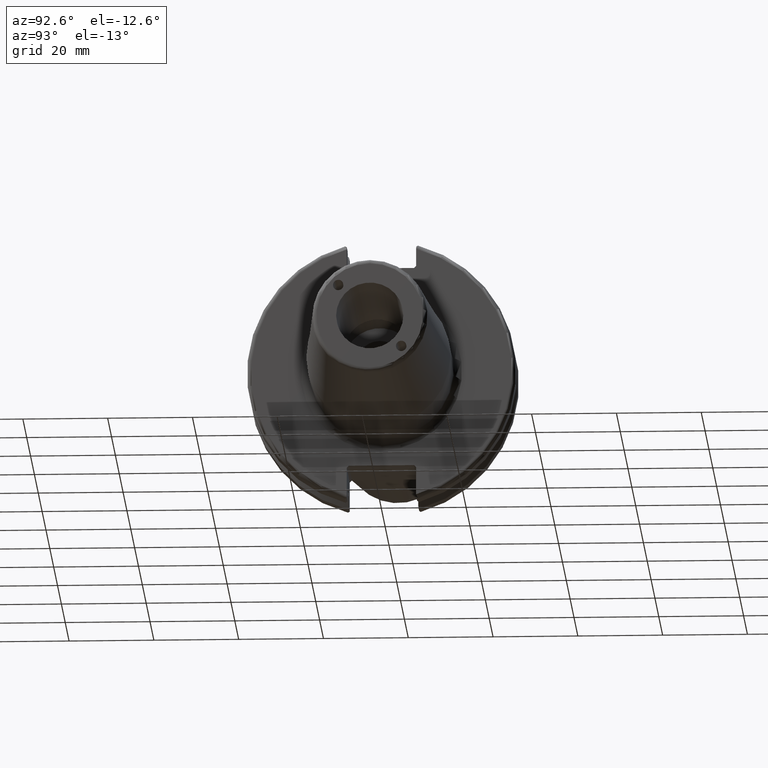
[diagram: clean part render]
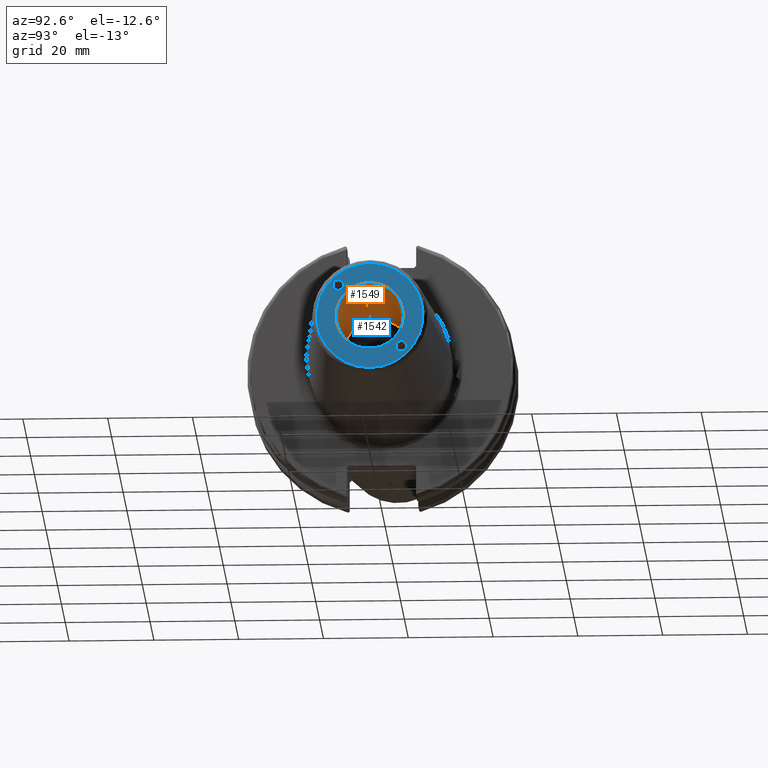
[diagram: same view with the hole feature highlighted: cylindrical wall and planar end face, labeled with their STEP entity ids]
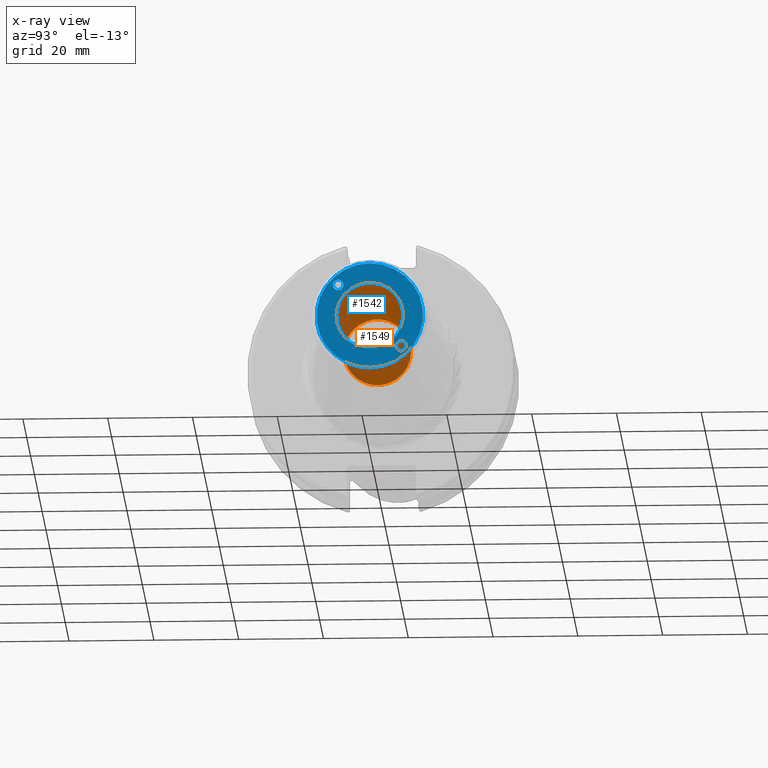
[diagram: x-ray of the same camera — body ghosted, the hole faces saturated]
A machine part, auxiliary view. The highlighted faces form one hole feature of diameter 15.875 mm: the cylindrical wall (entity #1549, orange) and its adjacent planar end face (entity #1542, blue) — they share a circular edge in the B-rep.
The next image is the same camera in x-ray (body ghosted, the hole faces saturated) — the bore reads through the body.
Wall:
#149=CYLINDRICAL_SURFACE('',#1684,7.9375);
#188=FACE_OUTER_BOUND('',#284,.T.);
#284=EDGE_LOOP('',(#1105,#1106,#1107,#1108));
#393=LINE('',#2394,#491);
#491=VECTOR('',#1926,7.9375);
#578=CIRCLE('',#1666,7.9375);
#590=CIRCLE('',#1685,7.9375);
#656=VERTEX_POINT('',#2340);
#677=VERTEX_POINT('',#2393);
#818=EDGE_CURVE('',#656,#656,#578,.T.);
#843=EDGE_CURVE('',#656,#677,#393,.T.);
#844=EDGE_CURVE('',#677,#677,#590,.T.);
#1105=ORIENTED_EDGE('',*,*,#818,.T.);
#1106=ORIENTED_EDGE('',*,*,#843,.T.);
#1107=ORIENTED_EDGE('',*,*,#844,.F.);
#1108=ORIENTED_EDGE('',*,*,#843,.F.);
#1549=ADVANCED_FACE('',(#188),#149,.F.);
#1666=AXIS2_PLACEMENT_3D('',#2341,#1875,#1876);
#1684=AXIS2_PLACEMENT_3D('',#2392,#1924,#1925);
#1685=AXIS2_PLACEMENT_3D('',#2395,#1927,#1928);
#1875=DIRECTION('center_axis',(1.,0.,0.));
#1876=DIRECTION('ref_axis',(0.,0.,-1.));
#1924=DIRECTION('center_axis',(1.,0.,0.));
#1925=DIRECTION('ref_axis',(0.,1.,0.));
#1926=DIRECTION('',(-1.,0.,0.));
#1927=DIRECTION('center_axis',(1.,0.,0.));
#1928=DIRECTION('ref_axis',(0.,0.,-1.));
#2340=CARTESIAN_POINT('',(80.,-7.9375,-9.72063396823211E-16));
#2341=CARTESIAN_POINT('Origin',(80.,0.,0.));
#2392=CARTESIAN_POINT('Origin',(60.,0.,0.));
#2393=CARTESIAN_POINT('',(40.,-7.9375,-9.72063396823211E-16));
#2394=CARTESIAN_POINT('',(60.,-7.9375,-9.72063396823211E-16));
#2395=CARTESIAN_POINT('Origin',(40.,0.,0.));
End face:
#61=FACE_BOUND('',#273,.T.);
#62=FACE_BOUND('',#274,.T.);
#63=FACE_BOUND('',#275,.T.);
#79=PLANE('',#1665);
#124=ELLIPSE('',#1653,1.25019041005488,1.25);
#125=ELLIPSE('',#1657,1.25019041005488,1.25);
#181=FACE_OUTER_BOUND('',#272,.T.);
#272=EDGE_LOOP('',(#1067));
#273=EDGE_LOOP('',(#1068));
#274=EDGE_LOOP('',(#1069));
#275=EDGE_LOOP('',(#1070));
#573=CIRCLE('',#1659,12.5756095083418);
#578=CIRCLE('',#1666,7.9375);
#648=VERTEX_POINT('',#2315);
#651=VERTEX_POINT('',#2324);
#652=VERTEX_POINT('',#2328);
#656=VERTEX_POINT('',#2340);
#806=EDGE_CURVE('',#648,#648,#124,.T.);
#810=EDGE_CURVE('',#651,#651,#125,.T.);
#812=EDGE_CURVE('',#652,#652,#573,.T.);
#818=EDGE_CURVE('',#656,#656,#578,.T.);
#1067=ORIENTED_EDGE('',*,*,#812,.F.);
#1068=ORIENTED_EDGE('',*,*,#806,.T.);
#1069=ORIENTED_EDGE('',*,*,#810,.T.);
#1070=ORIENTED_EDGE('',*,*,#818,.F.);
#1542=ADVANCED_FACE('',(#181,#61,#62,#63),#79,.T.);
#1653=AXIS2_PLACEMENT_3D('',#2316,#1845,#1846);
#1657=AXIS2_PLACEMENT_3D('',#2325,#1855,#1856);
#1659=AXIS2_PLACEMENT_3D('',#2329,#1860,#1861);
#1665=AXIS2_PLACEMENT_3D('',#2339,#1873,#1874);
#1666=AXIS2_PLACEMENT_3D('',#2341,#1875,#1876);
#1845=DIRECTION('center_axis',(-1.,0.,0.));
#1846=DIRECTION('ref_axis',(0.,-0.707106781186357,0.707106781186738));
#1855=DIRECTION('center_axis',(-1.,0.,0.));
#1856=DIRECTION('ref_axis',(0.,0.707106781186357,-0.707106781186738));
#1860=DIRECTION('center_axis',(-1.,0.,0.));
#1861=DIRECTION('ref_axis',(0.,-1.,1.83697019872103E-16));
#1873=DIRECTION('center_axis',(1.,0.,0.));
#1874=DIRECTION('ref_axis',(0.,0.,-1.));
#1875=DIRECTION('center_axis',(1.,0.,0.));
#1876=DIRECTION('ref_axis',(0.,0.,-1.));
#2315=CARTESIAN_POINT('',(80.,-6.17452599380598,7.42443079240442));
#2316=CARTESIAN_POINT('Origin',(80.,-7.42462120245875,7.42462120245875));
#2324=CARTESIAN_POINT('',(80.,6.17452599380599,-7.42443079240442));
#2325=CARTESIAN_POINT('Origin',(80.,7.42462120245875,-7.42462120245875));
#2328=CARTESIAN_POINT('',(80.,-1.54006799317178E-15,12.5756095083418));
#2329=CARTESIAN_POINT('Origin',(80.,0.,0.));
#2339=CARTESIAN_POINT('Origin',(80.,7.9375,0.));
#2340=CARTESIAN_POINT('',(80.,-7.9375,-9.72063396823211E-16));
#2341=CARTESIAN_POINT('Origin',(80.,0.,0.));